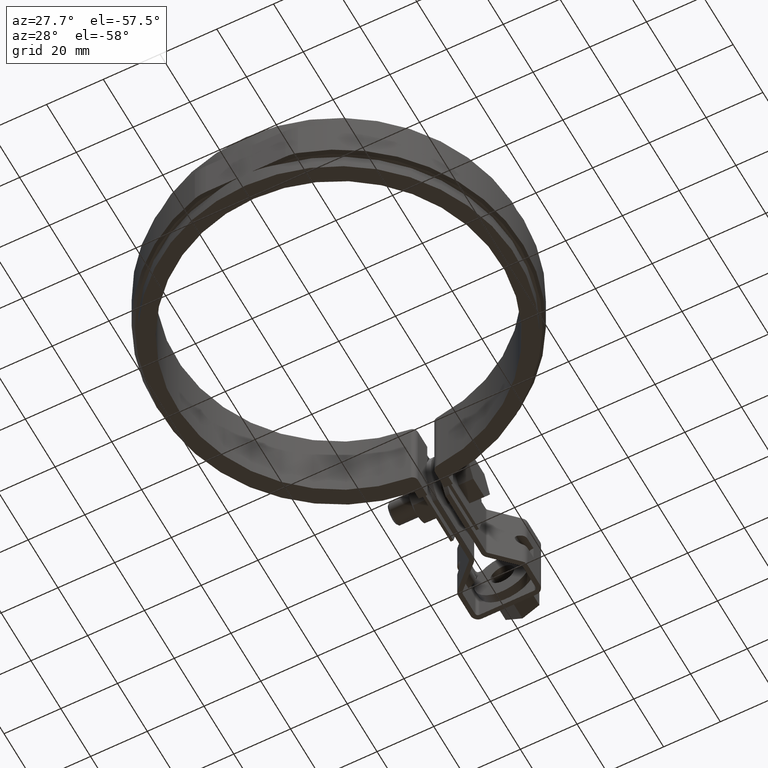
[diagram: clean part render]
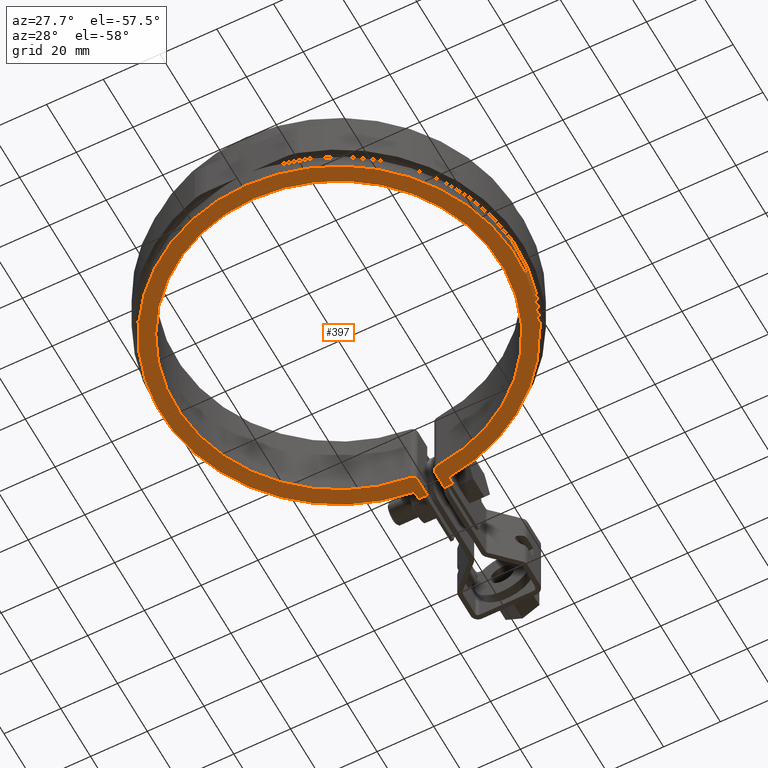
[diagram: same view with one face highlighted and labeled with its STEP entity id]
A machine part, auxiliary view. The second image highlights one B-rep face of the part: STEP entity #397.
In plain terms, the highlighted planar face has unit normal (0, 0, -1).
Its self-contained STEP definition (entity closure, byte-faithful):
#397 = ADVANCED_FACE( '', ( #700 ), #701, .T. );
#700 = FACE_OUTER_BOUND( '', #1592, .T. );
#701 = PLANE( '', #1593 );
#1592 = EDGE_LOOP( '', ( #3150, #3151, #3152, #3153, #3154, #3155, #3156, #3157, #3158, #3159 ) );
#1593 = AXIS2_PLACEMENT_3D( '', #3160, #3161, #3162 );
#3150 = ORIENTED_EDGE( '', *, *, #4429, .F. );
#3151 = ORIENTED_EDGE( '', *, *, #4426, .F. );
#3152 = ORIENTED_EDGE( '', *, *, #4408, .F. );
#3153 = ORIENTED_EDGE( '', *, *, #4383, .F. );
#3154 = ORIENTED_EDGE( '', *, *, #4404, .F. );
#3155 = ORIENTED_EDGE( '', *, *, #4423, .F. );
#3156 = ORIENTED_EDGE( '', *, *, #4430, .F. );
#3157 = ORIENTED_EDGE( '', *, *, #4431, .F. );
#3158 = ORIENTED_EDGE( '', *, *, #4432, .F. );
#3159 = ORIENTED_EDGE( '', *, *, #4329, .F. );
#3160 = CARTESIAN_POINT( '', ( 5.23468564512154, 60.8144995511336, -14.0000000000000 ) );
#3161 = DIRECTION( '', ( 0.000000000000000, 0.000000000000000, -1.00000000000000 ) );
#3162 = DIRECTION( '', ( 0.112630732099760, 0.993636914665851, 0.000000000000000 ) );
#4329 = EDGE_CURVE( '', #5018, #5020, #5021, .T. );
#4383 = EDGE_CURVE( '', #5109, #5080, #5111, .T. );
#4404 = EDGE_CURVE( '', #5144, #5109, #5146, .T. );
#4408 = EDGE_CURVE( '', #5080, #5153, #5154, .T. );
#4423 = EDGE_CURVE( '', #5174, #5144, #5176, .T. );
#4426 = EDGE_CURVE( '', #5153, #5177, #5181, .T. );
#4429 = EDGE_CURVE( '', #5177, #5018, #5185, .T. );
#4430 = EDGE_CURVE( '', #5186, #5174, #5187, .T. );
#4431 = EDGE_CURVE( '', #5188, #5186, #5189, .T. );
#4432 = EDGE_CURVE( '', #5020, #5188, #5190, .T. );
#5018 = VERTEX_POINT( '', #7257 );
#5020 = VERTEX_POINT( '', #7260 );
#5021 = CIRCLE( '', #7261, 2.00000000000000 );
#5080 = VERTEX_POINT( '', #7619 );
#5109 = VERTEX_POINT( '', #7653 );
#5111 = CIRCLE( '', #7656, 62.6500000000000 );
#5144 = VERTEX_POINT( '', #7906 );
#5146 = LINE( '', #7909, #7910 );
#5153 = VERTEX_POINT( '', #7922 );
#5154 = LINE( '', #7923, #7924 );
#5174 = VERTEX_POINT( '', #7968 );
#5176 = LINE( '', #7971, #7972 );
#5177 = VERTEX_POINT( '', #7973 );
#5181 = LINE( '', #7979, #7980 );
#5185 = LINE( '', #7986, #7987 );
#5186 = VERTEX_POINT( '', #7988 );
#5187 = LINE( '', #7989, #7990 );
#5188 = VERTEX_POINT( '', #7991 );
#5189 = CIRCLE( '', #7992, 2.00000000000000 );
#5190 = CIRCLE( '', #7993, 57.1500000000000 );
#7257 = CARTESIAN_POINT( '', ( 3.00000000000000, 58.9382940031352, -14.0000000000000 ) );
#7260 = CARTESIAN_POINT( '', ( 4.83093829247670, 56.9454522785998, -14.0000000000000 ) );
#7261 = AXIS2_PLACEMENT_3D( '', #8958, #8959, #8960 );
#7619 = CARTESIAN_POINT( '', ( 5.99999999999996, 62.3620277091757, -14.0000000000000 ) );
#7653 = CARTESIAN_POINT( '', ( -6.00000000000000, 62.3620277091757, -14.0000000000000 ) );
#7656 = AXIS2_PLACEMENT_3D( '', #9032, #9033, #9034 );
#7906 = CARTESIAN_POINT( '', ( -6.00000000000002, 65.1500000000000, -14.0000000000000 ) );
#7909 = CARTESIAN_POINT( '', ( -6.00000000000000, 65.1500000000000, -14.0000000000000 ) );
#7910 = VECTOR( '', #9048, 1000.00000000000 );
#7922 = CARTESIAN_POINT( '', ( 6.00000000000001, 65.1500000000000, -14.0000000000000 ) );
#7923 = CARTESIAN_POINT( '', ( 6.00000000000001, 62.3620277091758, -14.0000000000000 ) );
#7924 = VECTOR( '', #9051, 1000.00000000000 );
#7968 = CARTESIAN_POINT( '', ( -2.99999999999995, 65.1500000000000, -14.0000000000000 ) );
#7971 = CARTESIAN_POINT( '', ( -5.00000000000001, 65.1500000000000, -14.0000000000000 ) );
#7972 = VECTOR( '', #9063, 1000.00000000000 );
#7973 = CARTESIAN_POINT( '', ( 3.00000000000001, 65.1500000000000, -14.0000000000000 ) );
#7979 = CARTESIAN_POINT( '', ( 6.00000000000001, 65.1500000000000, -14.0000000000000 ) );
#7980 = VECTOR( '', #9066, 1000.00000000000 );
#7986 = CARTESIAN_POINT( '', ( 3.00000000000000, 65.1500000000000, -14.0000000000000 ) );
#7987 = VECTOR( '', #9069, 1000.00000000000 );
#7988 = CARTESIAN_POINT( '', ( -2.99999999999995, 58.9382940031352, -14.0000000000000 ) );
#7989 = CARTESIAN_POINT( '', ( -2.99999999999995, 58.9382940031352, -14.0000000000000 ) );
#7990 = VECTOR( '', #9070, 1000.00000000000 );
#7991 = CARTESIAN_POINT( '', ( -4.83093829247667, 56.9454522785998, -14.0000000000000 ) );
#7992 = AXIS2_PLACEMENT_3D( '', #9071, #9072, #9073 );
#7993 = AXIS2_PLACEMENT_3D( '', #9074, #9075, #9076 );
#8958 = CARTESIAN_POINT( '', ( 5.00000000000000, 58.9382940031352, -14.0000000000000 ) );
#8959 = DIRECTION( '', ( 0.000000000000000, 0.000000000000000, 1.00000000000000 ) );
#8960 = DIRECTION( '', ( -1.00000000000000, -1.17961196366423E-015, 0.000000000000000 ) );
#9032 = CARTESIAN_POINT( '', ( 8.67361737988404E-016, 0.000000000000000, -14.0000000000000 ) );
#9033 = DIRECTION( '', ( 0.000000000000000, 0.000000000000000, 1.00000000000000 ) );
#9034 = DIRECTION( '', ( 1.00000000000000, 2.77555756156289E-017, 0.000000000000000 ) );
#9048 = DIRECTION( '', ( -6.93889390390723E-017, -1.00000000000000, 0.000000000000000 ) );
#9051 = DIRECTION( '', ( 6.93889390390723E-017, 1.00000000000000, 0.000000000000000 ) );
#9063 = DIRECTION( '', ( -1.00000000000000, 0.000000000000000, 0.000000000000000 ) );
#9066 = DIRECTION( '', ( -1.00000000000000, 0.000000000000000, 0.000000000000000 ) );
#9069 = DIRECTION( '', ( 1.38777878078145E-017, -1.00000000000000, 0.000000000000000 ) );
#9070 = DIRECTION( '', ( -1.38777878078145E-017, 1.00000000000000, 0.000000000000000 ) );
#9071 = CARTESIAN_POINT( '', ( -4.99999999999995, 58.9382940031352, -14.0000000000000 ) );
#9072 = DIRECTION( '', ( 0.000000000000000, 0.000000000000000, 1.00000000000000 ) );
#9073 = DIRECTION( '', ( 1.00000000000000, -2.38697950294409E-015, 0.000000000000000 ) );
#9074 = CARTESIAN_POINT( '', ( 3.46944695195361E-015, 3.46944695195361E-014, -14.0000000000000 ) );
#9075 = DIRECTION( '', ( 0.000000000000000, 0.000000000000000, -1.00000000000000 ) );
#9076 = DIRECTION( '', ( 1.00000000000000, -5.55111512312578E-017, 0.000000000000000 ) );